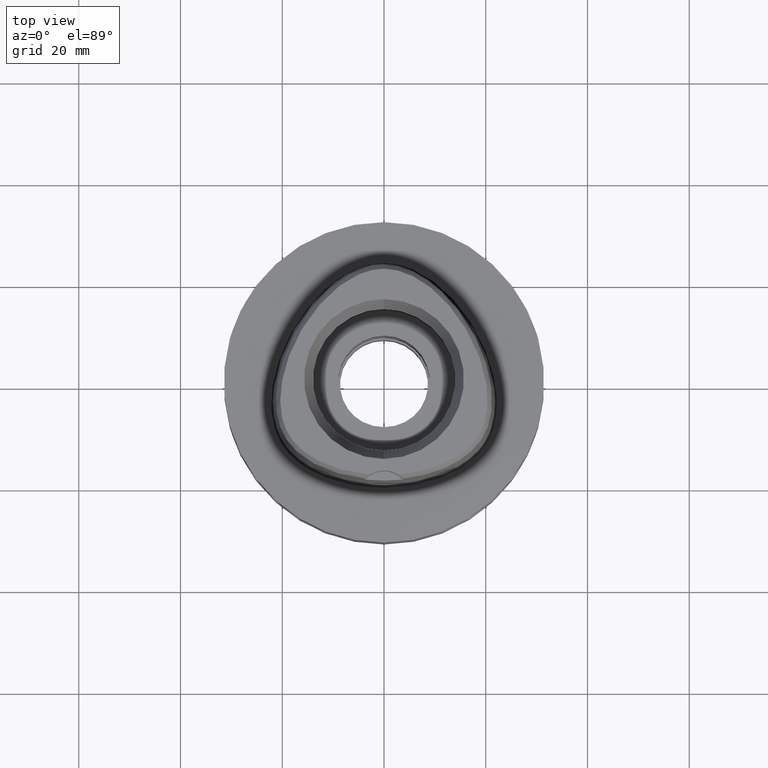
[diagram: clean part render]
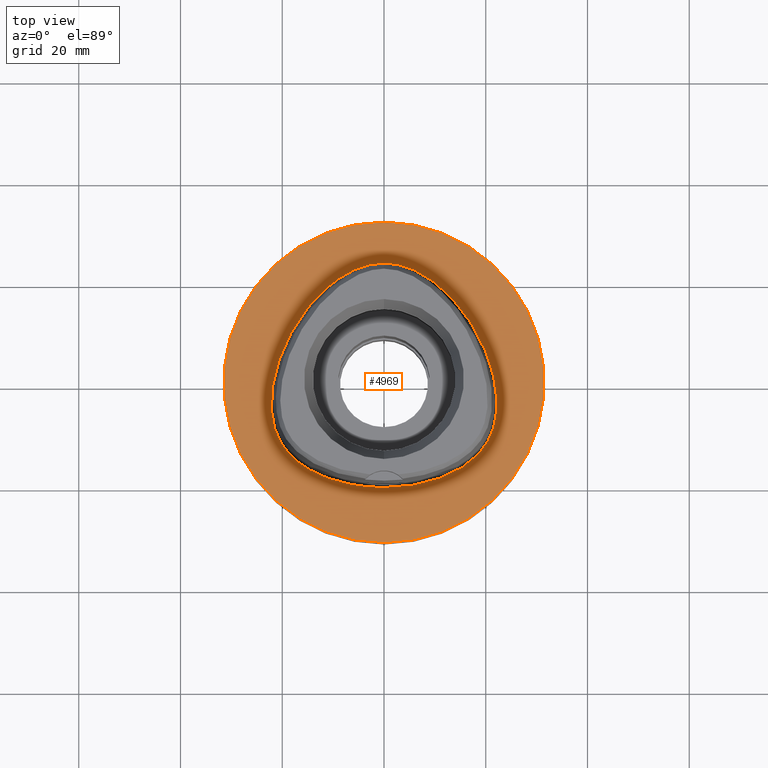
[diagram: same view with one face highlighted and labeled with its STEP entity id]
A machine part, top view. The second image highlights one B-rep face of the part: STEP entity #4969.
In plain terms, the highlighted planar face has unit normal (0, 0, -1).
Its self-contained STEP definition (entity closure, byte-faithful):
#57 = CARTESIAN_POINT ( 'NONE',  ( 6.174399409061999165E-11, 23.47499999999000053, 1.436998668205999677E-13 ) ) ;
#104 = DIRECTION ( 'NONE',  ( 0.0000000000000000000, -1.000000000000000000, 0.0000000000000000000 ) ) ;
#128 = AXIS2_PLACEMENT_3D ( 'NONE', #2664, #3505, #5132 ) ;
#191 = B_SPLINE_CURVE_WITH_KNOTS ( 'NONE', 3,
 ( #57, #615, #1505, #614, #5420, #2850, #4151, #2068, #2021, #4960, #4553, #3760, #3247, #4605, #406, #5415, #3660, #1657, #1578, #3356, #4178, #5012, #1235 ),
 .UNSPECIFIED., .F., .F.,
 ( 4, 1, 1, 1, 1, 1, 1, 1, 1, 1, 1, 1, 1, 1, 1, 1, 1, 1, 1, 1, 4 ),
 ( 0.0000000000000000000, 0.04166666666761999899, 0.08333333333423000033, 0.1250000000007999990, 0.1666666666675000186, 0.2500000000006999956, 0.3333333333339000282, 0.4166666666672000363, 0.5000000000004000134, 0.5416666666670000296, 0.5833333333336000459, 0.6250000000001999512, 0.6458333333335000148, 0.6666666666668999985, 0.6875000000001999512, 0.7083333333333999837, 0.7500000000001000311, 0.7916666666667000474, 0.8333333333333000637, 0.9166666666666000163, 1.000000000000000000 ),
 .UNSPECIFIED. ) ;
#194 = CARTESIAN_POINT ( 'NONE',  ( 22.05732874194319137, -6.847636718566505465, 5.133893405339338967E-08 ) ) ;
#217 = CARTESIAN_POINT ( 'NONE',  ( 6.341471018983529717, -20.29812499872887699, 5.133893405339339628E-08 ) ) ;
#250 = CARTESIAN_POINT ( 'NONE',  ( 20.74942740758246629, 4.657187499561644906, 5.133893405339338967E-08 ) ) ;
#314 = CARTESIAN_POINT ( 'NONE',  ( 11.23259756683577137, -18.89324218628103580, 5.133893405339338967E-08 ) ) ;
#347 = CARTESIAN_POINT ( 'NONE',  ( 0.0000000000000000000, -31.50000000000000000, 0.0000000000000000000 ) ) ;
#406 = CARTESIAN_POINT ( 'NONE',  ( -20.34961797806599293, -11.74885741753617552, 3.459377864462737096E-07 ) ) ;
#455 = VERTEX_POINT ( 'NONE', #347 ) ;
#466 = EDGE_CURVE ( 'NONE', #3265, #677, #191, .T. ) ;
#551 = DIRECTION ( 'NONE',  ( 0.0000000000000000000, 0.0000000000000000000, -1.000000000000000000 ) ) ;
#614 = CARTESIAN_POINT ( 'NONE',  ( -5.098437014055449801, 22.52602538256833142, 3.459377864462737096E-07 ) ) ;
#615 = CARTESIAN_POINT ( 'NONE',  ( -0.8548392416855618015, 23.47499999135876081, 3.459377864462737625E-07 ) ) ;
#643 = CARTESIAN_POINT ( 'NONE',  ( 0.8548392422176175343, 23.47499999872449195, 5.133893405339338967E-08 ) ) ;
#677 = VERTEX_POINT ( 'NONE', #954 ) ;
#734 = CARTESIAN_POINT ( 'NONE',  ( 5.098437016805040578, 22.52602538943070698, 5.133893405339338967E-08 ) ) ;
#760 = CARTESIAN_POINT ( 'NONE',  ( 0.0000000000000000000, 1.265672466918999865E-14, 0.0000000000000000000 ) ) ;
#921 = ORIENTED_EDGE ( 'NONE', *, *, #4512, .F. ) ;
#954 = CARTESIAN_POINT ( 'NONE',  ( -1.227254748288000161E-11, -20.67499999999999716, 1.466234541187999854E-13 ) ) ;
#1050 = FACE_BOUND ( 'NONE', #3218, .T. ) ;
#1109 = CARTESIAN_POINT ( 'NONE',  ( 16.95889172514020871, -15.67838867086465626, 5.133893405339338967E-08 ) ) ;
#1235 = CARTESIAN_POINT ( 'NONE',  ( -1.227254748288000161E-11, -20.67499999999999716, 1.466234541187999854E-13 ) ) ;
#1505 = CARTESIAN_POINT ( 'NONE',  ( -2.564517725179088270, 23.29328124148293355, 3.459377864462737096E-07 ) ) ;
#1578 = CARTESIAN_POINT ( 'NONE',  ( -14.67337963990355298, -17.21410155496725025, 3.459377864462737096E-07 ) ) ;
#1653 = ORIENTED_EDGE ( 'NONE', *, *, #466, .F. ) ;
#1657 = CARTESIAN_POINT ( 'NONE',  ( -16.95889172056334360, -15.67838866504611417, 3.459377864462737096E-07 ) ) ;
#1768 = CARTESIAN_POINT ( 'NONE',  ( 0.0000000000000000000, 1.265672466918999865E-14, 0.0000000000000000000 ) ) ;
#1890 = CARTESIAN_POINT ( 'NONE',  ( 19.64947365759156384, -12.82525390549806055, 5.133893405339338967E-08 ) ) ;
#1924 = ORIENTED_EDGE ( 'NONE', *, *, #3279, .F. ) ;
#1949 = CARTESIAN_POINT ( 'NONE',  ( 7.571159433700400676, 21.31457031138521430, 5.133893405339338967E-08 ) ) ;
#1980 = CARTESIAN_POINT ( 'NONE',  ( 18.56841065047631290, -14.16937988192454867, 5.133893405339338967E-08 ) ) ;
#2007 = CARTESIAN_POINT ( 'NONE',  ( 14.40795638859523642, 15.64093749916762022, 5.133893405339338967E-08 ) ) ;
#2021 = CARTESIAN_POINT ( 'NONE',  ( -20.74942740061855417, 4.657187497051561209, 3.459377864462737096E-07 ) ) ;
#2068 = CARTESIAN_POINT ( 'NONE',  ( -18.06826687773853735, 10.43171874565435076, 3.459377864462737096E-07 ) ) ;
#2231 = B_SPLINE_CURVE_WITH_KNOTS ( 'NONE', 3,
 ( #3993, #3203, #217, #314, #4543, #1109, #1980, #1890, #3287, #2307, #2421, #194, #3263, #3671, #250, #2835, #2007, #4485, #1949, #734, #2391, #643, #3617 ),
 .UNSPECIFIED., .F., .F.,
 ( 4, 1, 1, 1, 1, 1, 1, 1, 1, 1, 1, 1, 1, 1, 1, 1, 1, 1, 1, 1, 4 ),
 ( 0.0000000000000000000, 0.08333333333345001315, 0.1666666666668000230, 0.2083333333334000115, 0.2500000000000000000, 0.2916666666666999919, 0.3125000000000000000, 0.3333333333333000081, 0.3541666666666999919, 0.3750000000000000000, 0.4166666666666999919, 0.4583333333332000326, 0.4999999999998999689, 0.5833333333332000326, 0.6666666666664999852, 0.7499999999998000488, 0.8333333333329999704, 0.8749999999997000177, 0.9166666666664000651, 0.9583333333329999704, 1.000000000000000000 ),
 .UNSPECIFIED. ) ;
#2307 = CARTESIAN_POINT ( 'NONE',  ( 20.93173252094357295, -10.60431640572513601, 5.133893405339338967E-08 ) ) ;
#2356 = VERTEX_POINT ( 'NONE', #4549 ) ;
#2391 = CARTESIAN_POINT ( 'NONE',  ( 2.564517726692166821, 23.29328124873774186, 5.133893405339338967E-08 ) ) ;
#2421 = CARTESIAN_POINT ( 'NONE',  ( 21.55524825886109141, -8.996025390257862853, 5.133893405339338967E-08 ) ) ;
#2453 = DIRECTION ( 'NONE',  ( 0.0000000000000000000, 0.0000000000000000000, -1.000000000000000000 ) ) ;
#2664 = CARTESIAN_POINT ( 'NONE',  ( 0.0000000000000000000, 1.224646799146999965E-14, 0.0000000000000000000 ) ) ;
#2711 = AXIS2_PLACEMENT_3D ( 'NONE', #760, #2453, #3204 ) ;
#2747 = PLANE ( 'NONE',  #128 ) ;
#2835 = CARTESIAN_POINT ( 'NONE',  ( 18.06826688415234727, 10.43171874935659638, 5.133893405339338967E-08 ) ) ;
#2850 = CARTESIAN_POINT ( 'NONE',  ( -10.74572890499939959, 19.17433593084498966, 3.459377864462737096E-07 ) ) ;
#3063 = CARTESIAN_POINT ( 'NONE',  ( 6.174399409061999165E-11, 23.47499999999000053, 1.436998668205999677E-13 ) ) ;
#3203 = CARTESIAN_POINT ( 'NONE',  ( 2.113823672990543745, -20.67499999870905114, 5.133893405339339628E-08 ) ) ;
#3204 = DIRECTION ( 'NONE',  ( 0.0000000000000000000, 1.000000000000000000, 0.0000000000000000000 ) ) ;
#3218 = EDGE_LOOP ( 'NONE', ( #1653, #1924 ) ) ;
#3247 = CARTESIAN_POINT ( 'NONE',  ( -21.55524825177849024, -8.996025388152487423, 3.459377864462737096E-07 ) ) ;
#3263 = CARTESIAN_POINT ( 'NONE',  ( 22.24453907726493185, -4.100468750007731700, 5.133893405339338967E-08 ) ) ;
#3265 = VERTEX_POINT ( 'NONE', #3063 ) ;
#3279 = EDGE_CURVE ( 'NONE', #677, #3265, #2231, .T. ) ;
#3287 = CARTESIAN_POINT ( 'NONE',  ( 20.34961798445548808, -11.74885742122440213, 5.133893405339338967E-08 ) ) ;
#3356 = CARTESIAN_POINT ( 'NONE',  ( -11.23259756429891887, -18.89324217933712546, 3.459377864462737096E-07 ) ) ;
#3505 = DIRECTION ( 'NONE',  ( 0.0000000000000000000, 0.0000000000000000000, -1.000000000000000000 ) ) ;
#3537 = ORIENTED_EDGE ( 'NONE', *, *, #5098, .F. ) ;
#3617 = CARTESIAN_POINT ( 'NONE',  ( 6.174399409061999165E-11, 23.47499999999000053, 1.436998668205999677E-13 ) ) ;
#3660 = CARTESIAN_POINT ( 'NONE',  ( -18.56841064512599360, -14.16937987684424627, 3.459377864462737096E-07 ) ) ;
#3671 = CARTESIAN_POINT ( 'NONE',  ( 21.97832647659171101, -0.2810937502245363651, 5.133893405339338967E-08 ) ) ;
#3760 = CARTESIAN_POINT ( 'NONE',  ( -22.05732873462538990, -6.847636717514572702, 3.459377864462737096E-07 ) ) ;
#3933 = CIRCLE ( 'NONE', #4888, 31.50000000000000000 ) ;
#3993 = CARTESIAN_POINT ( 'NONE',  ( -1.227254748288000161E-11, -20.67499999999999716, 1.466234541187999854E-13 ) ) ;
#4117 = EDGE_LOOP ( 'NONE', ( #921, #3537 ) ) ;
#4151 = CARTESIAN_POINT ( 'NONE',  ( -14.40795638293355196, 15.64093749438234049, 3.459377864462737096E-07 ) ) ;
#4178 = CARTESIAN_POINT ( 'NONE',  ( -6.341471017674845889, -20.29812499144884441, 3.459377864462737096E-07 ) ) ;
#4352 = FACE_OUTER_BOUND ( 'NONE', #4117, .T. ) ;
#4485 = CARTESIAN_POINT ( 'NONE',  ( 10.74572890975553108, 19.17433593651193391, 5.133893405339338967E-08 ) ) ;
#4512 = EDGE_CURVE ( 'NONE', #2356, #455, #5076, .T. ) ;
#4543 = CARTESIAN_POINT ( 'NONE',  ( 14.67337964356189417, -17.21410156138248837, 5.133893405339338967E-08 ) ) ;
#4549 = CARTESIAN_POINT ( 'NONE',  ( 0.0000000000000000000, 31.50000000000000000, 0.0000000000000000000 ) ) ;
#4553 = CARTESIAN_POINT ( 'NONE',  ( -22.24453906986831697, -4.100468750050698219, 3.459377864462737096E-07 ) ) ;
#4605 = CARTESIAN_POINT ( 'NONE',  ( -20.93173251419439396, -10.60431640273427334, 3.459377864462737096E-07 ) ) ;
#4888 = AXIS2_PLACEMENT_3D ( 'NONE', #1768, #551, #104 ) ;
#4960 = CARTESIAN_POINT ( 'NONE',  ( -21.97832646930872613, -0.2810937515131004538, 3.459377864462737096E-07 ) ) ;
#4969 = ADVANCED_FACE ( 'NONE', ( #4352, #1050 ), #2747, .F. ) ;
#5012 = CARTESIAN_POINT ( 'NONE',  ( -2.113823672550860344, -20.67499999135609556, 3.459377864462737096E-07 ) ) ;
#5076 = CIRCLE ( 'NONE', #2711, 31.50000000000000000 ) ;
#5098 = EDGE_CURVE ( 'NONE', #455, #2356, #3933, .T. ) ;
#5132 = DIRECTION ( 'NONE',  ( 0.0000000000000000000, -1.000000000000000000, 0.0000000000000000000 ) ) ;
#5415 = CARTESIAN_POINT ( 'NONE',  ( -19.64947365162905513, -12.82525390115284303, 3.459377864462737096E-07 ) ) ;
#5420 = CARTESIAN_POINT ( 'NONE',  ( -7.571159429969791965, 21.31457030501186622, 3.459377864462737096E-07 ) ) ;